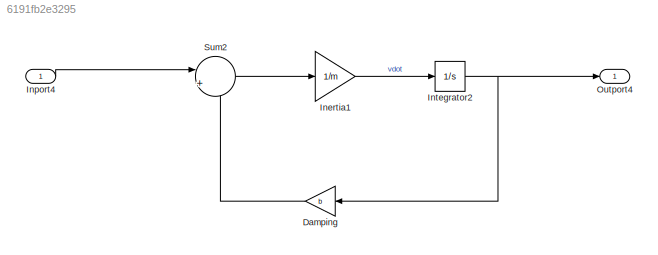
MODEL slx_6191fb2e3295
KIND model
CONFIG AbsTol = auto
CONFIG EnableMultiTasking = off
CONFIG FixedStep = auto
CONFIG MaxStep = auto
CONFIG MinStep = auto
CONFIG RelTol = 1e-3
CONFIG SampleTimeConstraint = Unconstrained
CONFIG SolverName = VariableStepAuto
CONFIG StartTime = 0.0
CONFIG StopTime = 120
WORKSPACE source: mxarray member
WORKSPACE b = 50
WORKSPACE m = 1000
BLOCK [Gain] Damping
  Gain = b
  NameLocation = top
BLOCK [Gain] Inertia1
  Gain = 1/m
BLOCK [Inport] Inport4
BLOCK [Integrator] Integrator2
  Ports = [1, 1]
BLOCK [Outport] Outport4
BLOCK [Sum] Sum2
  Inputs = |+-
  Ports = [2, 1]
LINE Damping:1 -> Sum2:2
LINE Inertia1:1 -> Integrator2:1
LINE Inport4:1 -> Sum2:1
NET Integrator2:1 -> Damping:1, Outport4:1
LINE Sum2:1 -> Inertia1:1
note: NET lines group one-source signal fan-out (src -> all destinations, sorted); 1:1 wires keep LINE
